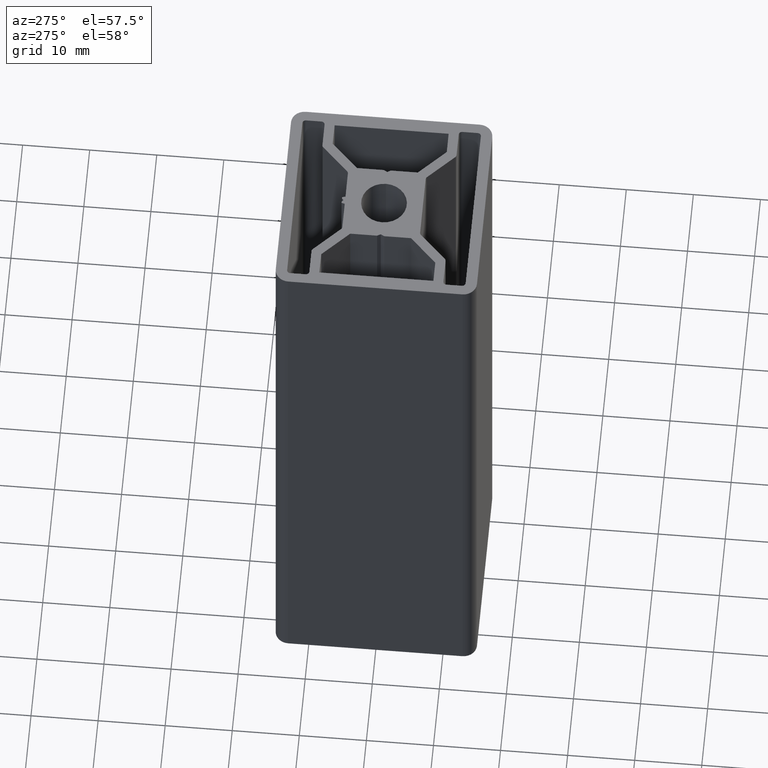
[diagram: clean part render]
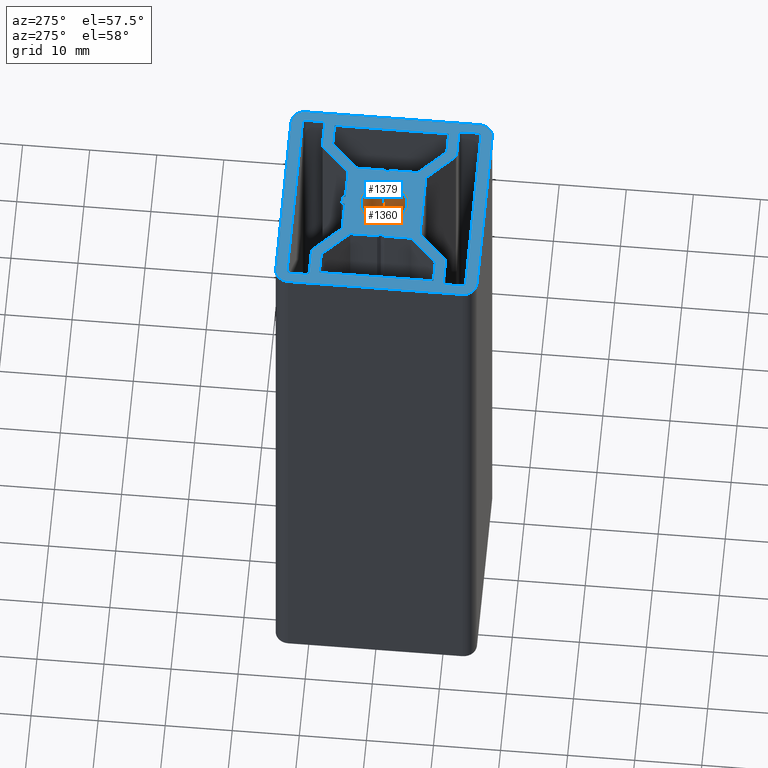
[diagram: same view with the hole feature highlighted: cylindrical wall and planar end face, labeled with their STEP entity ids]
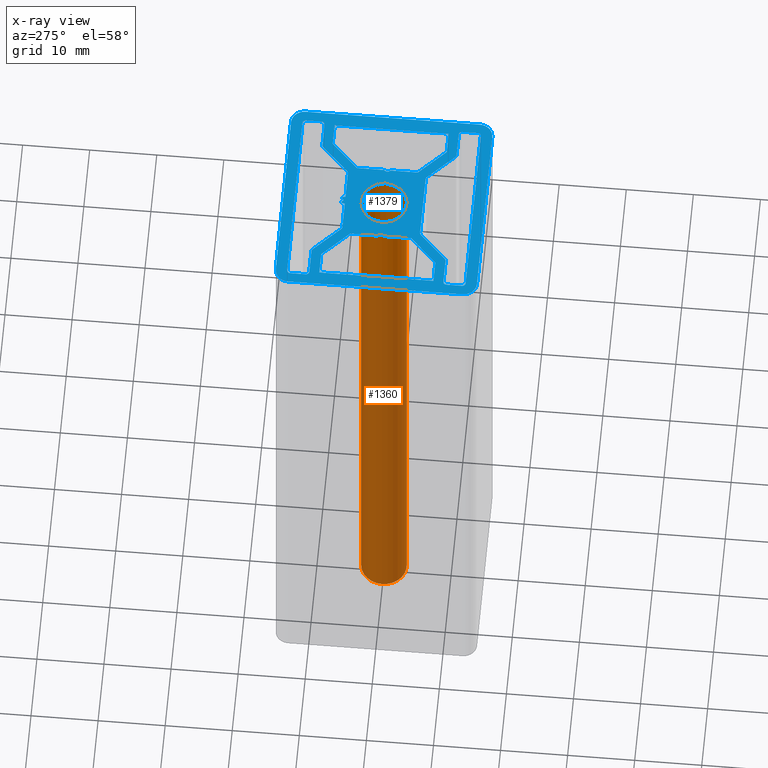
[diagram: x-ray of the same camera — body ghosted, the hole faces saturated]
A machine part, auxiliary view. The highlighted faces form one hole feature of diameter 6.8 mm: the cylindrical wall (entity #1360, orange) and its adjacent planar end face (entity #1379, blue) — they share a circular edge in the B-rep.
The next image is the same camera in x-ray (body ghosted, the hole faces saturated) — the bore reads through the body.
Wall:
#15=FACE_BOUND('',#212,.T.);
#62=CIRCLE('',#1467,3.4);
#63=CIRCLE('',#1468,3.4);
#90=CYLINDRICAL_SURFACE('',#1466,3.4);
#143=FACE_OUTER_BOUND('',#211,.T.);
#211=EDGE_LOOP('',(#1065));
#212=EDGE_LOOP('',(#1066));
#640=VERTEX_POINT('',#2167);
#641=VERTEX_POINT('',#2169);
#820=EDGE_CURVE('',#640,#640,#62,.T.);
#821=EDGE_CURVE('',#641,#641,#63,.T.);
#1065=ORIENTED_EDGE('',*,*,#820,.F.);
#1066=ORIENTED_EDGE('',*,*,#821,.F.);
#1360=ADVANCED_FACE('',(#143,#15),#90,.F.);
#1466=AXIS2_PLACEMENT_3D('',#2166,#1774,#1775);
#1467=AXIS2_PLACEMENT_3D('',#2168,#1776,#1777);
#1468=AXIS2_PLACEMENT_3D('',#2170,#1778,#1779);
#1774=DIRECTION('center_axis',(0.,0.,1.));
#1775=DIRECTION('ref_axis',(-1.,0.,0.));
#1776=DIRECTION('center_axis',(0.,0.,1.));
#1777=DIRECTION('ref_axis',(-1.,0.,0.));
#1778=DIRECTION('center_axis',(0.,0.,-1.));
#1779=DIRECTION('ref_axis',(-1.,0.,0.));
#2166=CARTESIAN_POINT('Origin',(0.,0.,0.));
#2167=CARTESIAN_POINT('',(3.4,-4.163799117101E-16,0.));
#2168=CARTESIAN_POINT('Origin',(0.,0.,0.));
#2169=CARTESIAN_POINT('',(3.4,-4.163799117101E-16,100.));
#2170=CARTESIAN_POINT('Origin',(0.,0.,100.));
End face:
#21=FACE_BOUND('',#237,.T.);
#22=FACE_BOUND('',#238,.T.);
#23=FACE_BOUND('',#239,.T.);
#24=FACE_BOUND('',#240,.T.);
#25=FACE_BOUND('',#241,.T.);
#26=CIRCLE('',#1384,0.180000000014402);
#28=CIRCLE('',#1389,0.500000004051056);
#30=CIRCLE('',#1393,0.500000004051056);
#32=CIRCLE('',#1397,0.500000004051055);
#34=CIRCLE('',#1401,0.500000004051055);
#36=CIRCLE('',#1405,0.500000004051055);
#38=CIRCLE('',#1409,0.500000004051055);
#40=CIRCLE('',#1413,0.500000004051056);
#42=CIRCLE('',#1417,0.500000004051056);
#44=CIRCLE('',#1422,0.179999996580413);
#46=CIRCLE('',#1426,0.500000004051055);
#48=CIRCLE('',#1430,0.500000004051056);
#50=CIRCLE('',#1434,0.500000004051055);
#52=CIRCLE('',#1438,0.500000004051055);
#54=CIRCLE('',#1442,0.500000004051055);
#56=CIRCLE('',#1446,0.500000004051056);
#58=CIRCLE('',#1450,0.500000004051056);
#60=CIRCLE('',#1454,0.500000004051055);
#63=CIRCLE('',#1468,3.4);
#64=CIRCLE('',#1480,2.00000000847673);
#66=CIRCLE('',#1484,2.00000000847673);
#68=CIRCLE('',#1488,2.00000000847673);
#70=CIRCLE('',#1492,2.00000000847673);
#162=FACE_OUTER_BOUND('',#236,.T.);
#236=EDGE_LOOP('',(#1201,#1202,#1203,#1204,#1205,#1206,#1207,#1208));
#237=EDGE_LOOP('',(#1209,#1210,#1211,#1212,#1213,#1214,#1215,#1216,#1217,
#1218,#1219,#1220,#1221,#1222,#1223,#1224,#1225,#1226,#1227,#1228,#1229,
#1230,#1231));
#238=EDGE_LOOP('',(#1232,#1233,#1234,#1235,#1236,#1237,#1238,#1239,#1240,
#1241,#1242,#1243,#1244,#1245,#1246,#1247));
#239=EDGE_LOOP('',(#1248,#1249,#1250,#1251,#1252,#1253,#1254,#1255,#1256));
#240=EDGE_LOOP('',(#1257));
#241=EDGE_LOOP('',(#1258,#1259,#1260,#1261,#1262,#1263,#1264,#1265,#1266));
#242=LINE('',#1881,#393);
#247=LINE('',#1895,#398);
#250=LINE('',#1901,#401);
#254=LINE('',#1913,#405);
#258=LINE('',#1925,#409);
#262=LINE('',#1937,#413);
#266=LINE('',#1949,#417);
#270=LINE('',#1961,#421);
#274=LINE('',#1973,#425);
#278=LINE('',#1985,#429);
#282=LINE('',#1997,#433);
#285=LINE('',#2003,#436);
#289=LINE('',#2014,#440);
#293=LINE('',#2027,#444);
#297=LINE('',#2039,#448);
#301=LINE('',#2051,#452);
#305=LINE('',#2063,#456);
#309=LINE('',#2075,#460);
#313=LINE('',#2087,#464);
#317=LINE('',#2099,#468);
#321=LINE('',#2110,#472);
#323=LINE('',#2115,#474);
#327=LINE('',#2123,#478);
#330=LINE('',#2129,#481);
#333=LINE('',#2135,#484);
#336=LINE('',#2141,#487);
#339=LINE('',#2147,#490);
#342=LINE('',#2153,#493);
#345=LINE('',#2159,#496);
#348=LINE('',#2164,#499);
#350=LINE('',#2174,#501);
#354=LINE('',#2182,#505);
#357=LINE('',#2188,#508);
#360=LINE('',#2194,#511);
#363=LINE('',#2200,#514);
#366=LINE('',#2206,#517);
#369=LINE('',#2212,#520);
#372=LINE('',#2218,#523);
#375=LINE('',#2223,#526);
#377=LINE('',#2228,#528);
#382=LINE('',#2242,#533);
#386=LINE('',#2254,#537);
#390=LINE('',#2266,#541);
#393=VECTOR('',#1500,0.321648877147214);
#398=VECTOR('',#1513,0.379519249161624);
#401=VECTOR('',#1518,4.11039044415851);
#405=VECTOR('',#1530,5.52548339481186);
#409=VECTOR('',#1542,3.64142134899642);
#413=VECTOR('',#1554,2.2999999992448);
#417=VECTOR('',#1566,25.999999996922);
#421=VECTOR('',#1578,2.29999999926083);
#425=VECTOR('',#1590,3.6414213955425);
#429=VECTOR('',#1602,5.52548341394905);
#433=VECTOR('',#1614,4.11039044415851);
#436=VECTOR('',#1619,0.379519249161623);
#440=VECTOR('',#1631,0.321648820549374);
#444=VECTOR('',#1643,5.52548338046126);
#448=VECTOR('',#1655,3.64142134966144);
#452=VECTOR('',#1667,2.30000000808924);
#456=VECTOR('',#1679,25.9999999959493);
#460=VECTOR('',#1691,2.30000000808924);
#464=VECTOR('',#1703,3.64142138496584);
#468=VECTOR('',#1715,5.52548339959845);
#472=VECTOR('',#1727,9.48873013961556);
#474=VECTOR('',#1731,4.00759259374365);
#478=VECTOR('',#1737,5.61837660973764);
#481=VECTOR('',#1742,3.2272077949919);
#484=VECTOR('',#1747,16.9999999999965);
#487=VECTOR('',#1752,3.2272077949919);
#490=VECTOR('',#1757,5.61837660973764);
#493=VECTOR('',#1762,4.00759253642223);
#496=VECTOR('',#1767,0.599999990712657);
#499=VECTOR('',#1772,0.599999990712657);
#501=VECTOR('',#1782,4.00759258375136);
#505=VECTOR('',#1788,0.599999990712657);
#508=VECTOR('',#1793,0.599999990712658);
#511=VECTOR('',#1798,4.00759253642223);
#514=VECTOR('',#1803,5.61837660973764);
#517=VECTOR('',#1808,3.22720779999996);
#520=VECTOR('',#1813,16.9999999900042);
#523=VECTOR('',#1818,3.22720779999996);
#526=VECTOR('',#1823,5.61837660973764);
#528=VECTOR('',#1827,25.9999999832609);
#533=VECTOR('',#1840,25.9999999739653);
#537=VECTOR('',#1852,25.9999999830465);
#541=VECTOR('',#1864,25.9999999741351);
#544=VERTEX_POINT('',#1879);
#545=VERTEX_POINT('',#1880);
#548=VERTEX_POINT('',#1888);
#550=VERTEX_POINT('',#1894);
#552=VERTEX_POINT('',#1900);
#554=VERTEX_POINT('',#1906);
#556=VERTEX_POINT('',#1912);
#558=VERTEX_POINT('',#1918);
#560=VERTEX_POINT('',#1924);
#562=VERTEX_POINT('',#1930);
#564=VERTEX_POINT('',#1936);
#566=VERTEX_POINT('',#1942);
#568=VERTEX_POINT('',#1948);
#570=VERTEX_POINT('',#1954);
#572=VERTEX_POINT('',#1960);
#574=VERTEX_POINT('',#1966);
#576=VERTEX_POINT('',#1972);
#578=VERTEX_POINT('',#1978);
#580=VERTEX_POINT('',#1984);
#582=VERTEX_POINT('',#1990);
#584=VERTEX_POINT('',#1996);
#586=VERTEX_POINT('',#2002);
#588=VERTEX_POINT('',#2008);
#590=VERTEX_POINT('',#2017);
#591=VERTEX_POINT('',#2018);
#594=VERTEX_POINT('',#2026);
#596=VERTEX_POINT('',#2032);
#598=VERTEX_POINT('',#2038);
#600=VERTEX_POINT('',#2044);
#602=VERTEX_POINT('',#2050);
#604=VERTEX_POINT('',#2056);
#606=VERTEX_POINT('',#2062);
#608=VERTEX_POINT('',#2068);
#610=VERTEX_POINT('',#2074);
#612=VERTEX_POINT('',#2080);
#614=VERTEX_POINT('',#2086);
#616=VERTEX_POINT('',#2092);
#618=VERTEX_POINT('',#2098);
#620=VERTEX_POINT('',#2104);
#622=VERTEX_POINT('',#2113);
#623=VERTEX_POINT('',#2114);
#626=VERTEX_POINT('',#2122);
#628=VERTEX_POINT('',#2128);
#630=VERTEX_POINT('',#2134);
#632=VERTEX_POINT('',#2140);
#634=VERTEX_POINT('',#2146);
#636=VERTEX_POINT('',#2152);
#638=VERTEX_POINT('',#2158);
#641=VERTEX_POINT('',#2169);
#642=VERTEX_POINT('',#2172);
#643=VERTEX_POINT('',#2173);
#646=VERTEX_POINT('',#2181);
#648=VERTEX_POINT('',#2187);
#650=VERTEX_POINT('',#2193);
#652=VERTEX_POINT('',#2199);
#654=VERTEX_POINT('',#2205);
#656=VERTEX_POINT('',#2211);
#658=VERTEX_POINT('',#2217);
#660=VERTEX_POINT('',#2226);
#661=VERTEX_POINT('',#2227);
#664=VERTEX_POINT('',#2235);
#666=VERTEX_POINT('',#2241);
#668=VERTEX_POINT('',#2247);
#670=VERTEX_POINT('',#2253);
#672=VERTEX_POINT('',#2259);
#674=VERTEX_POINT('',#2265);
#676=EDGE_CURVE('',#544,#545,#242,.T.);
#680=EDGE_CURVE('',#545,#548,#26,.T.);
#683=EDGE_CURVE('',#548,#550,#247,.T.);
#686=EDGE_CURVE('',#550,#552,#250,.T.);
#689=EDGE_CURVE('',#552,#554,#28,.T.);
#692=EDGE_CURVE('',#554,#556,#254,.T.);
#695=EDGE_CURVE('',#556,#558,#30,.T.);
#698=EDGE_CURVE('',#558,#560,#258,.T.);
#701=EDGE_CURVE('',#560,#562,#32,.T.);
#704=EDGE_CURVE('',#562,#564,#262,.T.);
#707=EDGE_CURVE('',#564,#566,#34,.T.);
#710=EDGE_CURVE('',#566,#568,#266,.T.);
#713=EDGE_CURVE('',#568,#570,#36,.T.);
#716=EDGE_CURVE('',#570,#572,#270,.T.);
#719=EDGE_CURVE('',#572,#574,#38,.T.);
#722=EDGE_CURVE('',#574,#576,#274,.T.);
#725=EDGE_CURVE('',#576,#578,#40,.T.);
#728=EDGE_CURVE('',#578,#580,#278,.T.);
#731=EDGE_CURVE('',#580,#582,#42,.T.);
#734=EDGE_CURVE('',#582,#584,#282,.T.);
#737=EDGE_CURVE('',#584,#586,#285,.T.);
#740=EDGE_CURVE('',#586,#588,#44,.T.);
#743=EDGE_CURVE('',#588,#544,#289,.T.);
#745=EDGE_CURVE('',#590,#591,#46,.T.);
#749=EDGE_CURVE('',#591,#594,#293,.T.);
#752=EDGE_CURVE('',#594,#596,#48,.T.);
#755=EDGE_CURVE('',#596,#598,#297,.T.);
#758=EDGE_CURVE('',#598,#600,#50,.T.);
#761=EDGE_CURVE('',#600,#602,#301,.T.);
#764=EDGE_CURVE('',#602,#604,#52,.T.);
#767=EDGE_CURVE('',#604,#606,#305,.T.);
#770=EDGE_CURVE('',#606,#608,#54,.T.);
#773=EDGE_CURVE('',#608,#610,#309,.T.);
#776=EDGE_CURVE('',#610,#612,#56,.T.);
#779=EDGE_CURVE('',#612,#614,#313,.T.);
#782=EDGE_CURVE('',#614,#616,#58,.T.);
#785=EDGE_CURVE('',#616,#618,#317,.T.);
#788=EDGE_CURVE('',#618,#620,#60,.T.);
#791=EDGE_CURVE('',#620,#590,#321,.T.);
#793=EDGE_CURVE('',#622,#623,#323,.T.);
#797=EDGE_CURVE('',#626,#622,#327,.T.);
#800=EDGE_CURVE('',#628,#626,#330,.T.);
#803=EDGE_CURVE('',#630,#628,#333,.T.);
#806=EDGE_CURVE('',#632,#630,#336,.T.);
#809=EDGE_CURVE('',#634,#632,#339,.T.);
#812=EDGE_CURVE('',#636,#634,#342,.T.);
#815=EDGE_CURVE('',#638,#636,#345,.T.);
#818=EDGE_CURVE('',#623,#638,#348,.T.);
#821=EDGE_CURVE('',#641,#641,#63,.T.);
#822=EDGE_CURVE('',#642,#643,#350,.T.);
#826=EDGE_CURVE('',#646,#642,#354,.T.);
#829=EDGE_CURVE('',#648,#646,#357,.T.);
#832=EDGE_CURVE('',#650,#648,#360,.T.);
#835=EDGE_CURVE('',#652,#650,#363,.T.);
#838=EDGE_CURVE('',#654,#652,#366,.T.);
#841=EDGE_CURVE('',#656,#654,#369,.T.);
#844=EDGE_CURVE('',#658,#656,#372,.T.);
#847=EDGE_CURVE('',#643,#658,#375,.T.);
#849=EDGE_CURVE('',#660,#661,#377,.T.);
#853=EDGE_CURVE('',#661,#664,#64,.T.);
#856=EDGE_CURVE('',#664,#666,#382,.T.);
#859=EDGE_CURVE('',#666,#668,#66,.T.);
#862=EDGE_CURVE('',#668,#670,#386,.T.);
#865=EDGE_CURVE('',#670,#672,#68,.T.);
#868=EDGE_CURVE('',#672,#674,#390,.T.);
#871=EDGE_CURVE('',#674,#660,#70,.T.);
#1201=ORIENTED_EDGE('',*,*,#862,.F.);
#1202=ORIENTED_EDGE('',*,*,#859,.F.);
#1203=ORIENTED_EDGE('',*,*,#856,.F.);
#1204=ORIENTED_EDGE('',*,*,#853,.F.);
#1205=ORIENTED_EDGE('',*,*,#849,.F.);
#1206=ORIENTED_EDGE('',*,*,#871,.F.);
#1207=ORIENTED_EDGE('',*,*,#868,.F.);
#1208=ORIENTED_EDGE('',*,*,#865,.F.);
#1209=ORIENTED_EDGE('',*,*,#676,.T.);
#1210=ORIENTED_EDGE('',*,*,#680,.T.);
#1211=ORIENTED_EDGE('',*,*,#683,.T.);
#1212=ORIENTED_EDGE('',*,*,#686,.T.);
#1213=ORIENTED_EDGE('',*,*,#689,.T.);
#1214=ORIENTED_EDGE('',*,*,#692,.T.);
#1215=ORIENTED_EDGE('',*,*,#695,.T.);
#1216=ORIENTED_EDGE('',*,*,#698,.T.);
#1217=ORIENTED_EDGE('',*,*,#701,.T.);
#1218=ORIENTED_EDGE('',*,*,#704,.T.);
#1219=ORIENTED_EDGE('',*,*,#707,.T.);
#1220=ORIENTED_EDGE('',*,*,#710,.T.);
#1221=ORIENTED_EDGE('',*,*,#713,.T.);
#1222=ORIENTED_EDGE('',*,*,#716,.T.);
#1223=ORIENTED_EDGE('',*,*,#719,.T.);
#1224=ORIENTED_EDGE('',*,*,#722,.T.);
#1225=ORIENTED_EDGE('',*,*,#725,.T.);
#1226=ORIENTED_EDGE('',*,*,#728,.T.);
#1227=ORIENTED_EDGE('',*,*,#731,.T.);
#1228=ORIENTED_EDGE('',*,*,#734,.T.);
#1229=ORIENTED_EDGE('',*,*,#737,.T.);
#1230=ORIENTED_EDGE('',*,*,#740,.T.);
#1231=ORIENTED_EDGE('',*,*,#743,.T.);
#1232=ORIENTED_EDGE('',*,*,#745,.T.);
#1233=ORIENTED_EDGE('',*,*,#749,.T.);
#1234=ORIENTED_EDGE('',*,*,#752,.T.);
#1235=ORIENTED_EDGE('',*,*,#755,.T.);
#1236=ORIENTED_EDGE('',*,*,#758,.T.);
#1237=ORIENTED_EDGE('',*,*,#761,.T.);
#1238=ORIENTED_EDGE('',*,*,#764,.T.);
#1239=ORIENTED_EDGE('',*,*,#767,.T.);
#1240=ORIENTED_EDGE('',*,*,#770,.T.);
#1241=ORIENTED_EDGE('',*,*,#773,.T.);
#1242=ORIENTED_EDGE('',*,*,#776,.T.);
#1243=ORIENTED_EDGE('',*,*,#779,.T.);
#1244=ORIENTED_EDGE('',*,*,#782,.T.);
#1245=ORIENTED_EDGE('',*,*,#785,.T.);
#1246=ORIENTED_EDGE('',*,*,#788,.T.);
#1247=ORIENTED_EDGE('',*,*,#791,.T.);
#1248=ORIENTED_EDGE('',*,*,#793,.T.);
#1249=ORIENTED_EDGE('',*,*,#818,.T.);
#1250=ORIENTED_EDGE('',*,*,#815,.T.);
#1251=ORIENTED_EDGE('',*,*,#812,.T.);
#1252=ORIENTED_EDGE('',*,*,#809,.T.);
#1253=ORIENTED_EDGE('',*,*,#806,.T.);
#1254=ORIENTED_EDGE('',*,*,#803,.T.);
#1255=ORIENTED_EDGE('',*,*,#800,.T.);
#1256=ORIENTED_EDGE('',*,*,#797,.T.);
#1257=ORIENTED_EDGE('',*,*,#821,.T.);
#1258=ORIENTED_EDGE('',*,*,#822,.T.);
#1259=ORIENTED_EDGE('',*,*,#847,.T.);
#1260=ORIENTED_EDGE('',*,*,#844,.T.);
#1261=ORIENTED_EDGE('',*,*,#841,.T.);
#1262=ORIENTED_EDGE('',*,*,#838,.T.);
#1263=ORIENTED_EDGE('',*,*,#835,.T.);
#1264=ORIENTED_EDGE('',*,*,#832,.T.);
#1265=ORIENTED_EDGE('',*,*,#829,.T.);
#1266=ORIENTED_EDGE('',*,*,#826,.T.);
#1311=PLANE('',#1495);
#1379=ADVANCED_FACE('',(#162,#21,#22,#23,#24,#25),#1311,.T.);
#1384=AXIS2_PLACEMENT_3D('',#1889,#1506,#1507);
#1389=AXIS2_PLACEMENT_3D('',#1907,#1523,#1524);
#1393=AXIS2_PLACEMENT_3D('',#1919,#1535,#1536);
#1397=AXIS2_PLACEMENT_3D('',#1931,#1547,#1548);
#1401=AXIS2_PLACEMENT_3D('',#1943,#1559,#1560);
#1405=AXIS2_PLACEMENT_3D('',#1955,#1571,#1572);
#1409=AXIS2_PLACEMENT_3D('',#1967,#1583,#1584);
#1413=AXIS2_PLACEMENT_3D('',#1979,#1595,#1596);
#1417=AXIS2_PLACEMENT_3D('',#1991,#1607,#1608);
#1422=AXIS2_PLACEMENT_3D('',#2009,#1624,#1625);
#1426=AXIS2_PLACEMENT_3D('',#2019,#1635,#1636);
#1430=AXIS2_PLACEMENT_3D('',#2033,#1648,#1649);
#1434=AXIS2_PLACEMENT_3D('',#2045,#1660,#1661);
#1438=AXIS2_PLACEMENT_3D('',#2057,#1672,#1673);
#1442=AXIS2_PLACEMENT_3D('',#2069,#1684,#1685);
#1446=AXIS2_PLACEMENT_3D('',#2081,#1696,#1697);
#1450=AXIS2_PLACEMENT_3D('',#2093,#1708,#1709);
#1454=AXIS2_PLACEMENT_3D('',#2105,#1720,#1721);
#1468=AXIS2_PLACEMENT_3D('',#2170,#1778,#1779);
#1480=AXIS2_PLACEMENT_3D('',#2236,#1833,#1834);
#1484=AXIS2_PLACEMENT_3D('',#2248,#1845,#1846);
#1488=AXIS2_PLACEMENT_3D('',#2260,#1857,#1858);
#1492=AXIS2_PLACEMENT_3D('',#2271,#1869,#1870);
#1495=AXIS2_PLACEMENT_3D('',#2274,#1875,#1876);
#1500=DIRECTION('',(-0.764023290905471,0.645188663069938,0.));
#1506=DIRECTION('center_axis',(0.,0.,1.));
#1507=DIRECTION('ref_axis',(-0.645188661777072,-0.764023291997247,0.));
#1513=DIRECTION('',(-0.258819043537059,-0.965925826708532,0.));
#1518=DIRECTION('',(-1.,0.,0.));
#1523=DIRECTION('center_axis',(0.,0.,-1.));
#1524=DIRECTION('ref_axis',(-0.707106782223408,-0.707106780149687,0.));
#1530=DIRECTION('',(-0.707106780149687,0.707106782223408,0.));
#1535=DIRECTION('center_axis',(0.,0.,1.));
#1536=DIRECTION('ref_axis',(-0.707106782223408,-0.707106780149687,0.));
#1542=DIRECTION('',(-1.,3.04887272913676E-16,0.));
#1547=DIRECTION('center_axis',(0.,0.,-1.));
#1548=DIRECTION('ref_axis',(-1.,0.,0.));
#1554=DIRECTION('',(9.65411326077998E-16,1.,0.));
#1559=DIRECTION('center_axis',(0.,0.,-1.));
#1560=DIRECTION('ref_axis',(-4.44089206251857E-15,1.,0.));
#1566=DIRECTION('',(1.,8.54017711351224E-17,0.));
#1571=DIRECTION('center_axis',(0.,0.,-1.));
#1572=DIRECTION('ref_axis',(1.,0.,0.));
#1578=DIRECTION('',(4.29871597393732E-10,-1.,0.));
#1583=DIRECTION('center_axis',(0.,0.,-1.));
#1584=DIRECTION('ref_axis',(-1.94535497244107E-9,-1.,0.));
#1590=DIRECTION('',(-1.,3.89950817072086E-13,0.));
#1595=DIRECTION('center_axis',(0.,0.,1.));
#1596=DIRECTION('ref_axis',(0.,-1.,0.));
#1602=DIRECTION('',(-0.707106782223408,-0.707106780149687,0.));
#1607=DIRECTION('center_axis',(0.,0.,-1.));
#1608=DIRECTION('ref_axis',(0.,-1.,0.));
#1614=DIRECTION('',(-1.,0.,0.));
#1619=DIRECTION('',(-0.258819046667268,0.965925825869796,0.));
#1624=DIRECTION('center_axis',(0.,0.,1.));
#1625=DIRECTION('ref_axis',(-0.965925825721432,-0.258819047220968,0.));
#1631=DIRECTION('',(-0.76402319503501,-0.645188776598365,0.));
#1635=DIRECTION('center_axis',(0.,0.,-1.));
#1636=DIRECTION('ref_axis',(0.707106782223409,0.707106780149686,0.));
#1643=DIRECTION('',(0.707106780149687,-0.707106782223408,0.));
#1648=DIRECTION('center_axis',(0.,0.,1.));
#1649=DIRECTION('ref_axis',(0.707106782223408,0.707106780149687,0.));
#1655=DIRECTION('',(1.,0.,0.));
#1660=DIRECTION('center_axis',(0.,0.,-1.));
#1661=DIRECTION('ref_axis',(1.,0.,0.));
#1667=DIRECTION('',(0.,-1.,0.));
#1672=DIRECTION('center_axis',(0.,0.,-1.));
#1673=DIRECTION('ref_axis',(-1.94535497244659E-9,-1.,0.));
#1679=DIRECTION('',(-1.,-8.54017711383173E-17,0.));
#1684=DIRECTION('center_axis',(0.,0.,-1.));
#1685=DIRECTION('ref_axis',(-1.,0.,0.));
#1691=DIRECTION('',(0.,1.,0.));
#1696=DIRECTION('center_axis',(0.,0.,-1.));
#1697=DIRECTION('ref_axis',(0.,1.,0.));
#1703=DIRECTION('',(1.,0.,0.));
#1708=DIRECTION('center_axis',(0.,0.,1.));
#1709=DIRECTION('ref_axis',(0.,1.,0.));
#1715=DIRECTION('',(0.707106782223408,0.707106780149687,0.));
#1720=DIRECTION('center_axis',(0.,0.,-1.));
#1721=DIRECTION('ref_axis',(0.,1.,0.));
#1727=DIRECTION('',(1.,4.68017535872356E-16,0.));
#1731=DIRECTION('',(0.,1.,0.));
#1737=DIRECTION('',(-0.707106780149687,0.707106782223408,0.));
#1742=DIRECTION('',(-1.,0.,0.));
#1747=DIRECTION('',(0.,-1.,0.));
#1752=DIRECTION('',(1.,0.,0.));
#1757=DIRECTION('',(0.707106782223408,0.707106780149687,0.));
#1762=DIRECTION('',(1.93920941356831E-15,1.,0.));
#1767=DIRECTION('',(0.499999988321116,0.866025410527246,0.));
#1772=DIRECTION('',(-0.500000007739375,0.866025399316108,0.));
#1778=DIRECTION('center_axis',(0.,0.,-1.));
#1779=DIRECTION('ref_axis',(-1.,0.,0.));
#1782=DIRECTION('',(-5.54059825904717E-16,-1.,0.));
#1788=DIRECTION('',(-0.499999988321116,-0.866025410527246,0.));
#1793=DIRECTION('',(0.500000007739375,-0.866025399316109,0.));
#1798=DIRECTION('',(-1.66217949734427E-15,-1.,0.));
#1803=DIRECTION('',(0.707106780149687,-0.707106782223408,0.));
#1808=DIRECTION('',(1.,0.,0.));
#1813=DIRECTION('',(0.,1.,0.));
#1818=DIRECTION('',(-1.,0.,0.));
#1823=DIRECTION('',(-0.707106782223409,-0.707106780149686,0.));
#1827=DIRECTION('',(1.,-1.51799940237017E-11,0.));
#1833=DIRECTION('center_axis',(0.,0.,-1.));
#1834=DIRECTION('ref_axis',(-1.,3.84254848573491E-10,0.));
#1840=DIRECTION('',(2.97539770897479E-11,-1.,0.));
#1845=DIRECTION('center_axis',(0.,0.,-1.));
#1846=DIRECTION('ref_axis',(0.,1.,0.));
#1852=DIRECTION('',(-1.,0.,0.));
#1857=DIRECTION('center_axis',(0.,0.,-1.));
#1858=DIRECTION('ref_axis',(1.,0.,0.));
#1864=DIRECTION('',(0.,1.,0.));
#1869=DIRECTION('center_axis',(0.,0.,-1.));
#1870=DIRECTION('ref_axis',(0.,-1.,0.));
#1875=DIRECTION('center_axis',(0.,0.,1.));
#1876=DIRECTION('ref_axis',(1.,0.,0.));
#1879=CARTESIAN_POINT('',(0.,6.04999998059426,100.));
#1880=CARTESIAN_POINT('',(-0.245747233634064,6.25752418961882,100.));
#1881=CARTESIAN_POINT('',(1.36826735428518,4.89455014609083,100.));
#1888=CARTESIAN_POINT('',(-0.535747841794187,6.1665874250925,100.));
#1889=CARTESIAN_POINT('Origin',(-0.361881192587984,6.11999999725583,100.));
#1894=CARTESIAN_POINT('',(-0.633974650866101,5.79999998059426,100.));
#1895=CARTESIAN_POINT('',(-1.33774052011309,3.17350998290477,100.));
#1900=CARTESIAN_POINT('',(-4.74436509502461,5.79999998059426,100.));
#1901=CARTESIAN_POINT('',(-2.37218254751231,5.79999998059426,100.));
#1906=CARTESIAN_POINT('',(-5.09791848900096,5.94644659170599,100.));
#1907=CARTESIAN_POINT('Origin',(-4.74436509502461,6.29999998464547,100.));
#1912=CARTESIAN_POINT('',(-9.00502526107693,9.85355337524028,100.));
#1913=CARTESIAN_POINT('',(-4.29038060869722,5.138908709034,100.));
#1918=CARTESIAN_POINT('',(-9.35857865505328,9.99999998635201,100.));
#1919=CARTESIAN_POINT('Origin',(-9.35857865505328,9.49999998230079,100.));
#1924=CARTESIAN_POINT('',(-13.0000000040497,9.99999998635201,100.));
#1925=CARTESIAN_POINT('',(-6.50000000202485,9.999999986352,100.));
#1930=CARTESIAN_POINT('',(-13.5000000081009,10.4999999904032,100.));
#1931=CARTESIAN_POINT('Origin',(-13.0000000040497,10.4999999904032,100.));
#1936=CARTESIAN_POINT('',(-13.5000000081009,12.799999989648,100.));
#1937=CARTESIAN_POINT('',(-13.5000000081009,6.39999999501875,100.));
#1942=CARTESIAN_POINT('',(-13.0000000040497,13.2999999936992,100.));
#1943=CARTESIAN_POINT('Origin',(-13.0000000040497,12.799999989648,100.));
#1948=CARTESIAN_POINT('',(12.9999999928723,13.2999999936992,100.));
#1949=CARTESIAN_POINT('',(6.49999999643614,13.2999999936992,100.));
#1954=CARTESIAN_POINT('',(13.4999999959348,12.799999989664,100.));
#1955=CARTESIAN_POINT('Origin',(12.9999999918996,12.799999989664,100.));
#1960=CARTESIAN_POINT('',(13.4999999969235,10.4999999904032,100.));
#1961=CARTESIAN_POINT('',(13.4999999991803,5.24999999829798,100.));
#1966=CARTESIAN_POINT('',(12.9999999918996,9.99999998635058,100.));
#1967=CARTESIAN_POINT('Origin',(12.9999999928723,10.4999999904032,100.));
#1972=CARTESIAN_POINT('',(9.3585785963571,9.99999998635201,100.));
#1973=CARTESIAN_POINT('',(4.6792892981805,9.99999998635383,100.));
#1978=CARTESIAN_POINT('',(9.00502520341761,9.85355337627714,100.));
#1979=CARTESIAN_POINT('Origin',(9.3585785963571,9.49999998230079,100.));
#1984=CARTESIAN_POINT('',(5.09791840635129,5.94644659066913,100.));
#1985=CARTESIAN_POINT('',(2.3368271534559,3.18535534587115,100.));
#1990=CARTESIAN_POINT('',(4.74436501341181,5.79999998059426,100.));
#1991=CARTESIAN_POINT('Origin',(4.74436501341181,6.29999998464547,100.));
#1996=CARTESIAN_POINT('',(0.633974569253293,5.79999998059426,100.));
#1997=CARTESIAN_POINT('',(0.316987284626646,5.79999998059426,100.));
#2002=CARTESIAN_POINT('',(0.535747758993404,6.16658742477419,100.));
#2003=CARTESIAN_POINT('',(1.28862704372899,3.35680370038166,100.));
#2008=CARTESIAN_POINT('',(0.245747159555375,6.25752418961882,100.));
#2009=CARTESIAN_POINT('Origin',(0.361881114026259,6.11999999725583,100.));
#2014=CARTESIAN_POINT('',(-1.49114104637576,4.79078759843262,100.));
#2017=CARTESIAN_POINT('',(4.74436509332959,-5.8000000003386,100.));
#2018=CARTESIAN_POINT('',(5.09791848730593,-5.94644661145033,100.));
#2019=CARTESIAN_POINT('Origin',(4.74436509332959,-6.30000000438981,100.));
#2026=CARTESIAN_POINT('',(9.0050252492345,-9.85355338483721,100.));
#2027=CARTESIAN_POINT('',(4.29038059722143,-5.13890871899758,100.));
#2032=CARTESIAN_POINT('',(9.35857864321084,-9.99999999594894,100.));
#2033=CARTESIAN_POINT('Origin',(9.35857864321084,-9.49999999189773,100.));
#2038=CARTESIAN_POINT('',(12.9999999928723,-9.99999999594894,100.));
#2039=CARTESIAN_POINT('',(6.49999999643614,-9.99999999594894,100.));
#2044=CARTESIAN_POINT('',(13.4999999969235,-10.5000000000002,100.));
#2045=CARTESIAN_POINT('Origin',(12.9999999928723,-10.5000000000002,100.));
#2050=CARTESIAN_POINT('',(13.4999999969235,-12.8000000080894,100.));
#2051=CARTESIAN_POINT('',(13.4999999969235,-6.40000000384996,100.));
#2056=CARTESIAN_POINT('',(12.9999999918996,-13.3000000121406,100.));
#2057=CARTESIAN_POINT('Origin',(12.9999999928723,-12.8000000080894,100.));
#2062=CARTESIAN_POINT('',(-13.0000000040497,-13.3000000121406,100.));
#2063=CARTESIAN_POINT('',(-6.50000000202485,-13.3000000121406,100.));
#2068=CARTESIAN_POINT('',(-13.5000000081009,-12.8000000080894,100.));
#2069=CARTESIAN_POINT('Origin',(-13.0000000040497,-12.8000000080894,100.));
#2074=CARTESIAN_POINT('',(-13.5000000081009,-10.5000000000002,100.));
#2075=CARTESIAN_POINT('',(-13.5000000081009,-5.24999999980535,100.));
#2080=CARTESIAN_POINT('',(-13.0000000040497,-9.99999999594894,100.));
#2081=CARTESIAN_POINT('Origin',(-13.0000000040497,-10.5000000000002,100.));
#2086=CARTESIAN_POINT('',(-9.35857861908386,-9.99999999594894,100.));
#2087=CARTESIAN_POINT('',(-4.67928930954193,-9.99999999594894,100.));
#2092=CARTESIAN_POINT('',(-9.00502522614437,-9.85355338587407,100.));
#2093=CARTESIAN_POINT('Origin',(-9.35857861908386,-9.49999999189773,100.));
#2098=CARTESIAN_POINT('',(-5.09791843922545,-5.94644661041347,100.));
#2099=CARTESIAN_POINT('',(-2.33682717298071,-3.18535535226613,100.));
#2104=CARTESIAN_POINT('',(-4.74436504628597,-5.8000000003386,100.));
#2105=CARTESIAN_POINT('Origin',(-4.74436504628597,-6.30000000438982,100.));
#2110=CARTESIAN_POINT('',(2.3721825466648,-5.8000000003386,100.));
#2113=CARTESIAN_POINT('',(5.79999999462518,-4.52720781037069,100.));
#2114=CARTESIAN_POINT('',(5.79999999462518,-0.519615216627045,100.));
#2115=CARTESIAN_POINT('',(5.79999999462518,-0.259807608118789,100.));
#2122=CARTESIAN_POINT('',(9.77279218880508,-8.50000001620154,100.));
#2123=CARTESIAN_POINT('',(3.21819804753124,-1.94540585570514,100.));
#2128=CARTESIAN_POINT('',(12.999999983797,-8.50000001620154,100.));
#2129=CARTESIAN_POINT('',(4.88639609440254,-8.50000001620154,100.));
#2134=CARTESIAN_POINT('',(12.999999983797,8.49999998379494,100.));
#2135=CARTESIAN_POINT('',(12.999999983797,-4.25000000790603,100.));
#2140=CARTESIAN_POINT('',(9.77279218880508,8.49999998379494,100.));
#2141=CARTESIAN_POINT('',(6.49999999189849,8.49999998379494,100.));
#2146=CARTESIAN_POINT('',(5.79999998297424,4.52720778961504,100.));
#2147=CARTESIAN_POINT('',(5.20459413858731,3.93180194697426,100.));
#2152=CARTESIAN_POINT('',(5.79999998297423,0.519615253192818,100.));
#2153=CARTESIAN_POINT('',(5.79999998297423,2.26360389500225,100.));
#2158=CARTESIAN_POINT('',(5.49999999462523,1.4919545598957E-8,100.));
#2159=CARTESIAN_POINT('',(4.96250001844265,-0.93097728188981,100.));
#2164=CARTESIAN_POINT('',(4.81249997715965,1.19078495079861,100.));
#2169=CARTESIAN_POINT('',(3.4,-4.163799117101E-16,100.));
#2170=CARTESIAN_POINT('Origin',(0.,0.,100.));
#2172=CARTESIAN_POINT('',(-5.79999999011627,-0.519615238273272,100.));
#2173=CARTESIAN_POINT('',(-5.79999999011628,-4.52720782202463,100.));
#2174=CARTESIAN_POINT('',(-5.79999999011627,-2.26360391081758,100.));
#2181=CARTESIAN_POINT('',(-5.50000000176728,0.,100.));
#2182=CARTESIAN_POINT('',(-4.96250002775348,0.930977293052924,100.));
#2187=CARTESIAN_POINT('',(-5.80000000176723,0.519615231546591,100.));
#2188=CARTESIAN_POINT('',(-4.81249998034741,-1.19078494272809,100.));
#2193=CARTESIAN_POINT('',(-5.80000000176722,4.52720776796882,100.));
#2194=CARTESIAN_POINT('',(-5.80000000176723,0.259807615968033,100.));
#2199=CARTESIAN_POINT('',(-9.77279219594712,8.49999997379966,100.));
#2200=CARTESIAN_POINT('',(-3.21819806368297,1.94540582231296,100.));
#2205=CARTESIAN_POINT('',(-12.9999999959471,8.49999997379966,100.));
#2206=CARTESIAN_POINT('',(-4.88639609797356,8.49999997379966,100.));
#2211=CARTESIAN_POINT('',(-12.9999999959471,-8.50000001620452,100.));
#2212=CARTESIAN_POINT('',(-12.9999999959471,4.24999998709457,100.));
#2217=CARTESIAN_POINT('',(-9.77279219594712,-8.50000001620452,100.));
#2218=CARTESIAN_POINT('',(-6.49999999797354,-8.50000001620452,100.));
#2223=CARTESIAN_POINT('',(-5.20459413564671,-3.9318019693012,100.));
#2226=CARTESIAN_POINT('',(-12.9999999915233,14.9999999963232,100.));
#2227=CARTESIAN_POINT('',(12.9999999917377,14.9999999959286,100.));
#2228=CARTESIAN_POINT('',(6.49999999598268,14.9999999960272,100.));
#2235=CARTESIAN_POINT('',(14.9999999992264,12.9999999868977,100.));
#2236=CARTESIAN_POINT('Origin',(12.9999999909641,12.9999999876662,100.));
#2241=CARTESIAN_POINT('',(15.,-12.9999999870676,100.));
#2242=CARTESIAN_POINT('',(14.9999999998066,-6.4999999931159,100.));
#2247=CARTESIAN_POINT('',(12.9999999915233,-14.9999999955443,100.));
#2248=CARTESIAN_POINT('Origin',(12.9999999915233,-12.9999999870676,100.));
#2253=CARTESIAN_POINT('',(-12.9999999915233,-14.9999999955443,100.));
#2254=CARTESIAN_POINT('',(-6.49999999576163,-14.9999999955443,100.));
#2259=CARTESIAN_POINT('',(-15.,-12.9999999870676,100.));
#2260=CARTESIAN_POINT('Origin',(-12.9999999915233,-12.9999999870676,100.));
#2265=CARTESIAN_POINT('',(-15.,12.9999999870676,100.));
#2266=CARTESIAN_POINT('',(-15.,6.49999999372852,100.));
#2271=CARTESIAN_POINT('Origin',(-12.9999999915233,12.9999999878465,100.));
#2274=CARTESIAN_POINT('Origin',(0.,3.89466237038505E-10,100.));